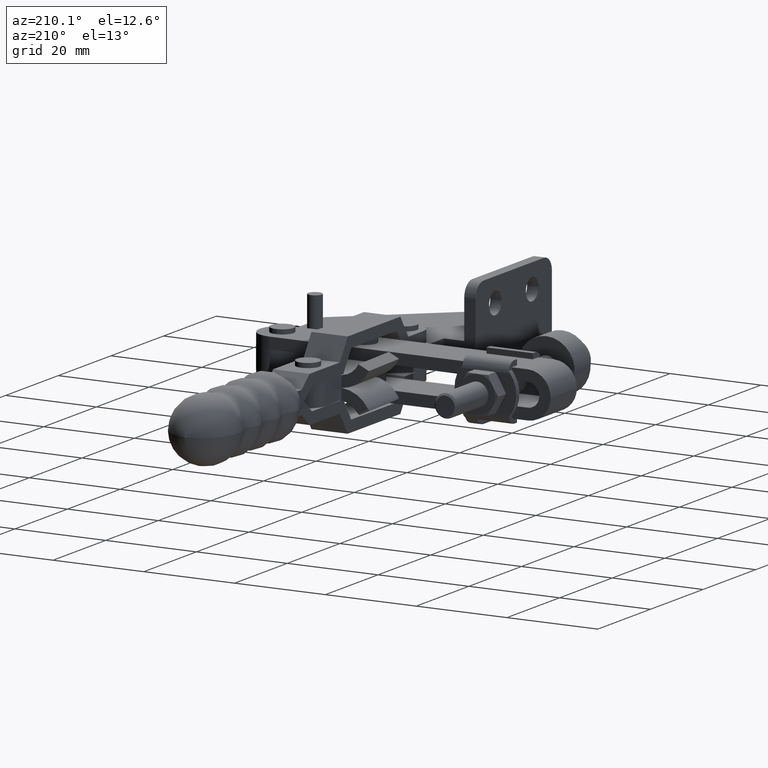
[diagram: clean part render]
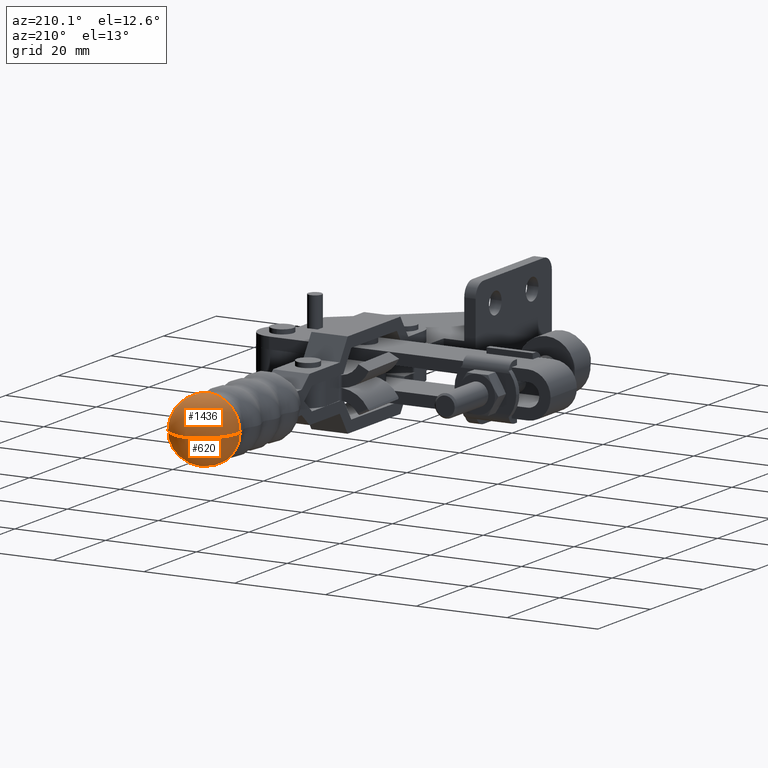
[diagram: same view with one multi-face feature highlighted, each face labeled with its STEP entity id]
A machine part, auxiliary view. The highlighted faces form ONE feature: a constant-radius fillet chain: 2 tangent blend faces with common blend radius 8.2181 mm. The faces share edges in the B-rep.
Their STEP definitions:
[1] entity #1436 (Torus):
#395 = EDGE_LOOP ( 'NONE', ( #4293, #2165, #8796 ) ) ;
#546 = DIRECTION ( 'NONE',  ( 6.139581518573649800E-031, 1.000000000000000000, -1.526760972485686300E-015 ) ) ;
#891 = CARTESIAN_POINT ( 'NONE',  ( -22.84346039393461700, 88.86372240235697000, -1.222884098617582700E-013 ) ) ;
#936 = AXIS2_PLACEMENT_3D ( 'NONE', #2402, #3064, #3073 ) ;
#1436 = ADVANCED_FACE ( 'NONE', ( #4603 ), #7841, .T. ) ;
#1683 = DIRECTION ( 'NONE',  ( -1.000000000000000000, 0.0000000000000000000, -1.562756255276108700E-015 ) ) ;
#2165 = ORIENTED_EDGE ( 'NONE', *, *, #8598, .T. ) ;
#2402 = CARTESIAN_POINT ( 'NONE',  ( -23.99999999999988300, 88.86372240235697000, -1.240957993656113300E-013 ) ) ;
#3064 = DIRECTION ( 'NONE',  ( 6.139581518573649800E-031, 1.000000000000000000, -1.526760972485686300E-015 ) ) ;
#3073 = DIRECTION ( 'NONE',  ( -1.000000000000000000, -1.771997108206073100E-030, -1.562756255276106500E-015 ) ) ;
#3092 = CARTESIAN_POINT ( 'NONE',  ( -30.99999999999989300, 87.85999999999988600, -1.335026489614157200E-013 ) ) ;
#3192 = VERTEX_POINT ( 'NONE', #4818 ) ;
#3197 = AXIS2_PLACEMENT_3D ( 'NONE', #891, #6436, #1683 ) ;
#3822 = DIRECTION ( 'NONE',  ( -1.685220935190842400E-015, 1.526760972485686100E-015, 1.000000000000000000 ) ) ;
#4089 = CIRCLE ( 'NONE', #3197, 8.218065283648257900 ) ;
#4293 = ORIENTED_EDGE ( 'NONE', *, *, #5764, .T. ) ;
#4603 = FACE_OUTER_BOUND ( 'NONE', #395, .T. ) ;
#4818 = CARTESIAN_POINT ( 'NONE',  ( -23.99999999999989300, 96.99999999999994300, -1.365179504630022700E-013 ) ) ;
#4826 = VERTEX_POINT ( 'NONE', #3092 ) ;
#5270 = CARTESIAN_POINT ( 'NONE',  ( -23.99999999999990100, 87.85999999999990000, -1.225633551744829700E-013 ) ) ;
#5764 = EDGE_CURVE ( 'NONE', #4826, #6181, #7121, .T. ) ;
#6073 = DIRECTION ( 'NONE',  ( -1.000000000000000000, 0.0000000000000000000, -1.562756255276106700E-015 ) ) ;
#6181 = VERTEX_POINT ( 'NONE', #6718 ) ;
#6436 = DIRECTION ( 'NONE',  ( 1.562756255276107100E-015, -1.526760972485686100E-015, -1.000000000000000000 ) ) ;
#6527 = CIRCLE ( 'NONE', #7779, 8.218065283648257900 ) ;
#6548 = EDGE_CURVE ( 'NONE', #4826, #3192, #4089, .T. ) ;
#6718 = CARTESIAN_POINT ( 'NONE',  ( -16.99999999999989000, 87.85999999999988600, -1.107668086281470800E-013 ) ) ;
#7121 = CIRCLE ( 'NONE', #8714, 7.000000000000006200 ) ;
#7779 = AXIS2_PLACEMENT_3D ( 'NONE', #8636, #3822, #9413 ) ;
#7841 = TOROIDAL_SURFACE ( 'NONE', #936, -1.156539606065263700, 8.218065283648257900 ) ;
#8598 = EDGE_CURVE ( 'NONE', #6181, #3192, #6527, .T. ) ;
#8636 = CARTESIAN_POINT ( 'NONE',  ( -25.15653960606514900, 88.86372240235697000, -1.260448241221298800E-013 ) ) ;
#8714 = AXIS2_PLACEMENT_3D ( 'NONE', #5270, #546, #6073 ) ;
#8796 = ORIENTED_EDGE ( 'NONE', *, *, #6548, .F. ) ;
#9413 = DIRECTION ( 'NONE',  ( 1.000000000000000000, 0.0000000000000000000, 1.685220935190842000E-015 ) ) ;
[2] entity #620 (Torus):
#347 = AXIS2_PLACEMENT_3D ( 'NONE', #4566, #834, #6302 ) ;
#620 = ADVANCED_FACE ( 'NONE', ( #9123 ), #1168, .T. ) ;
#834 = DIRECTION ( 'NONE',  ( 6.139581518573649800E-031, 1.000000000000000000, -1.526760972485686300E-015 ) ) ;
#891 = CARTESIAN_POINT ( 'NONE',  ( -22.84346039393461700, 88.86372240235697000, -1.222884098617582700E-013 ) ) ;
#1168 = TOROIDAL_SURFACE ( 'NONE', #347, -1.156539606065263700, 8.218065283648257900 ) ;
#1683 = DIRECTION ( 'NONE',  ( -1.000000000000000000, 0.0000000000000000000, -1.562756255276108700E-015 ) ) ;
#2269 = EDGE_CURVE ( 'NONE', #6181, #4826, #9091, .T. ) ;
#3092 = CARTESIAN_POINT ( 'NONE',  ( -30.99999999999989300, 87.85999999999988600, -1.335026489614157200E-013 ) ) ;
#3192 = VERTEX_POINT ( 'NONE', #4818 ) ;
#3197 = AXIS2_PLACEMENT_3D ( 'NONE', #891, #6436, #1683 ) ;
#3262 = ORIENTED_EDGE ( 'NONE', *, *, #2269, .T. ) ;
#3413 = EDGE_LOOP ( 'NONE', ( #7224, #3262, #5658 ) ) ;
#3822 = DIRECTION ( 'NONE',  ( -1.685220935190842400E-015, 1.526760972485686100E-015, 1.000000000000000000 ) ) ;
#4089 = CIRCLE ( 'NONE', #3197, 8.218065283648257900 ) ;
#4566 = CARTESIAN_POINT ( 'NONE',  ( -23.99999999999988300, 88.86372240235697000, -1.240957993656113300E-013 ) ) ;
#4818 = CARTESIAN_POINT ( 'NONE',  ( -23.99999999999989300, 96.99999999999994300, -1.365179504630022700E-013 ) ) ;
#4826 = VERTEX_POINT ( 'NONE', #3092 ) ;
#4913 = AXIS2_PLACEMENT_3D ( 'NONE', #10121, #5940, #5610 ) ;
#5610 = DIRECTION ( 'NONE',  ( -1.000000000000000000, 0.0000000000000000000, -1.562756255276106700E-015 ) ) ;
#5658 = ORIENTED_EDGE ( 'NONE', *, *, #6548, .T. ) ;
#5940 = DIRECTION ( 'NONE',  ( 6.139581518573649800E-031, 1.000000000000000000, -1.526760972485686300E-015 ) ) ;
#6181 = VERTEX_POINT ( 'NONE', #6718 ) ;
#6302 = DIRECTION ( 'NONE',  ( -1.000000000000000000, -1.771997108206073100E-030, -1.562756255276106500E-015 ) ) ;
#6436 = DIRECTION ( 'NONE',  ( 1.562756255276107100E-015, -1.526760972485686100E-015, -1.000000000000000000 ) ) ;
#6527 = CIRCLE ( 'NONE', #7779, 8.218065283648257900 ) ;
#6548 = EDGE_CURVE ( 'NONE', #4826, #3192, #4089, .T. ) ;
#6718 = CARTESIAN_POINT ( 'NONE',  ( -16.99999999999989000, 87.85999999999988600, -1.107668086281470800E-013 ) ) ;
#7224 = ORIENTED_EDGE ( 'NONE', *, *, #8598, .F. ) ;
#7779 = AXIS2_PLACEMENT_3D ( 'NONE', #8636, #3822, #9413 ) ;
#8598 = EDGE_CURVE ( 'NONE', #6181, #3192, #6527, .T. ) ;
#8636 = CARTESIAN_POINT ( 'NONE',  ( -25.15653960606514900, 88.86372240235697000, -1.260448241221298800E-013 ) ) ;
#9091 = CIRCLE ( 'NONE', #4913, 7.000000000000006200 ) ;
#9123 = FACE_OUTER_BOUND ( 'NONE', #3413, .T. ) ;
#9413 = DIRECTION ( 'NONE',  ( 1.000000000000000000, 0.0000000000000000000, 1.685220935190842000E-015 ) ) ;
#10121 = CARTESIAN_POINT ( 'NONE',  ( -23.99999999999990100, 87.85999999999990000, -1.225633551744829700E-013 ) ) ;